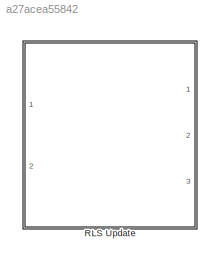
MODEL slx_a27acea55842
KIND library
CONFIG AbsTol = auto
CONFIG EnableMultiTasking = off
CONFIG FixedStep = auto
CONFIG MaxStep = auto
CONFIG MinStep = auto
CONFIG RelTol = 1e-3
CONFIG SampleTimeConstraint = Unconstrained
CONFIG Solver = VariableStepAuto
CONFIG SolverName = VariableStepAuto
CONFIG StartTime = 0.0
CONFIG StopTime = 10.0
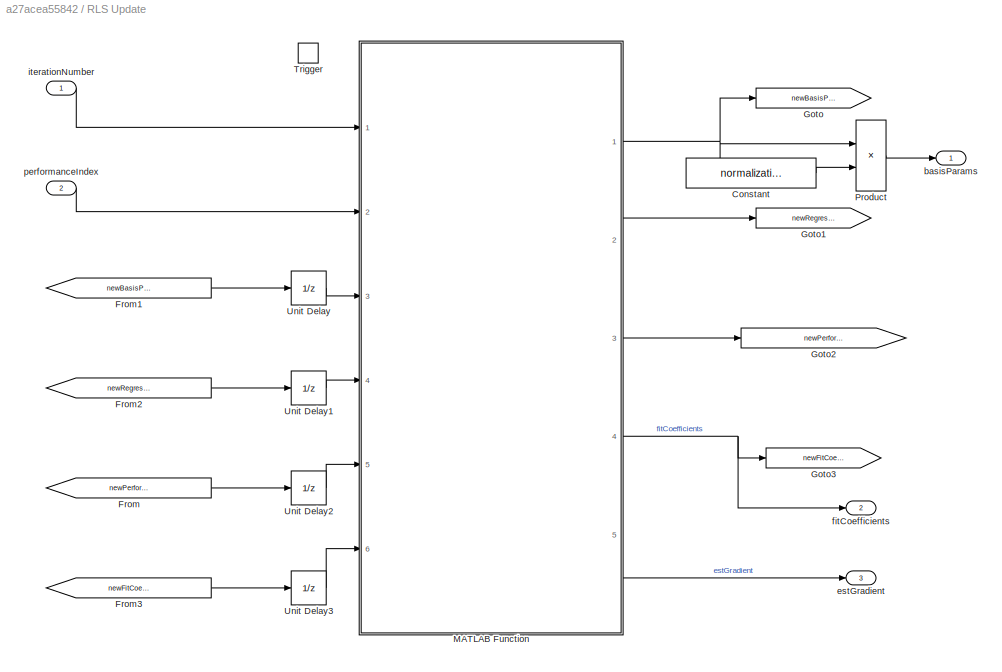
BLOCK [SubSystem] RLS Update
  Ports = [2, 3, 0, 1]
  RequestExecContextInheritance = off
  TreatAsAtomicUnit = on
BLOCK [Constant] RLS Update/Constant
  Value = normalizationFactors
BLOCK [From] RLS Update/From
  GotoTag = newPerformanceIndexVector
BLOCK [From] RLS Update/From1
  GotoTag = newBasisParams
BLOCK [From] RLS Update/From2
  GotoTag = newRegressorMatrix
BLOCK [From] RLS Update/From3
  GotoTag = newFitCoefficients
BLOCK [Goto] RLS Update/Goto
  GotoTag = newBasisParams
BLOCK [Goto] RLS Update/Goto1
  GotoTag = newRegressorMatrix
BLOCK [Goto] RLS Update/Goto2
  GotoTag = newPerformanceIndexVector
BLOCK [Goto] RLS Update/Goto3
  GotoTag = newFitCoefficients
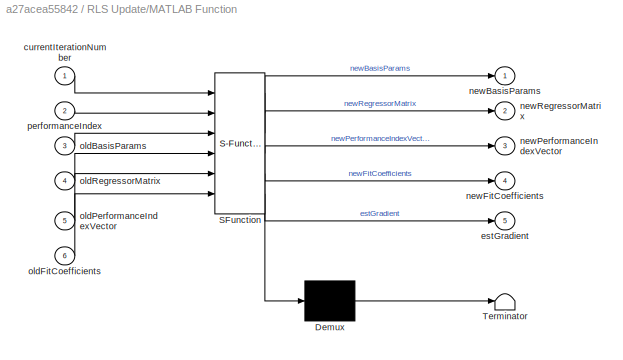
BLOCK [SubSystem] RLS Update/MATLAB Function
  ErrorFcn = Stateflow.Translate.translate
  PermitHierarchicalResolution = ExplicitOnly
  Ports = [6, 5]
  RequestExecContextInheritance = off
  SFBlockType = MATLAB Function
  TreatAsAtomicUnit = on
BLOCK [Demux] RLS Update/MATLAB Function/ Demux 
  Outputs = 1
  Ports = [1, 1]
BLOCK [S-Function] RLS Update/MATLAB Function/ SFunction 
  EnableBusSupport = off
  FunctionName = sf_sfun
  Parameters = forgettingFactor,initializationBasisParameters,learningGain,noiseAmplitude,normalizationFactors,numSettlingLaps,trustRegionDimensions
  PortCounts = [6 6]
  Ports = [6, 6]
  SFcnIsStateOwnerBlock = off
  SFunctionDeploymentMode = off
  Tag = Stateflow S-Function RLSUpdate_ul 2
BLOCK [Terminator] RLS Update/MATLAB Function/ Terminator 
BLOCK [Inport] RLS Update/MATLAB Function/currentIterationNumber
  IconDisplay = Port number
BLOCK [Outport] RLS Update/MATLAB Function/estGradient
  IconDisplay = Port number
  Port = 5
BLOCK [Outport] RLS Update/MATLAB Function/newBasisParams
  IconDisplay = Port number
BLOCK [Outport] RLS Update/MATLAB Function/newFitCoefficients
  IconDisplay = Port number
  Port = 4
BLOCK [Outport] RLS Update/MATLAB Function/newPerformanceIndexVector
  IconDisplay = Port number
  Port = 3
BLOCK [Outport] RLS Update/MATLAB Function/newRegressorMatrix
  IconDisplay = Port number
  Port = 2
BLOCK [Inport] RLS Update/MATLAB Function/oldBasisParams
  IconDisplay = Port number
  Port = 3
BLOCK [Inport] RLS Update/MATLAB Function/oldFitCoefficients
  IconDisplay = Port number
  Port = 6
BLOCK [Inport] RLS Update/MATLAB Function/oldPerformanceIndexVector
  IconDisplay = Port number
  Port = 5
BLOCK [Inport] RLS Update/MATLAB Function/oldRegressorMatrix
  IconDisplay = Port number
  Port = 4
BLOCK [Inport] RLS Update/MATLAB Function/performanceIndex
  IconDisplay = Port number
  Port = 2
BLOCK [Product] RLS Update/Product
  InputSameDT = off
  OutDataTypeStr = Inherit: Inherit via internal rule
  Ports = [2, 1]
  RndMeth = Floor
  SaturateOnIntegerOverflow = off
BLOCK [TriggerPort] RLS Update/Trigger
  PortDimensions = 1
  Ports = []
  StatesWhenEnabling = held
  VariantControl = Variant
BLOCK [UnitDelay] RLS Update/Unit Delay
  InitialCondition = settlingBasisParameter./normalizationFactors
  InputProcessing = Elements as channels (sample based)
  SampleTime = -1
BLOCK [UnitDelay] RLS Update/Unit Delay1
  InitialCondition = nan(size(p.initializationBasisParameters,1))
  InputProcessing = Elements as channels (sample based)
  SampleTime = -1
BLOCK [UnitDelay] RLS Update/Unit Delay2
  InitialCondition = nan(size(initializationBasisParameters,1),1)
  InputProcessing = Elements as channels (sample based)
  SampleTime = -1
BLOCK [UnitDelay] RLS Update/Unit Delay3
  InitialCondition = nan(size(initializationBasisParameters,1),1)
  InputProcessing = Elements as channels (sample based)
  SampleTime = -1
BLOCK [Outport] RLS Update/basisParams
  IconDisplay = Port number
  InitialOutput = settlingBasisParameter
BLOCK [Outport] RLS Update/estGradient
  IconDisplay = Port number
  Port = 3
BLOCK [Outport] RLS Update/fitCoefficients
  IconDisplay = Port number
  Port = 2
BLOCK [Inport] RLS Update/iterationNumber
  IconDisplay = Port number
BLOCK [Inport] RLS Update/performanceIndex
  IconDisplay = Port number
  Port = 2
LINE RLS Update/Constant:1 -> RLS Update/Product:2
LINE RLS Update/From1:1 -> RLS Update/Unit Delay:1
LINE RLS Update/From2:1 -> RLS Update/Unit Delay1:1
LINE RLS Update/From3:1 -> RLS Update/Unit Delay3:1
LINE RLS Update/From:1 -> RLS Update/Unit Delay2:1
NET RLS Update/MATLAB Function:1 -> RLS Update/Goto:1, RLS Update/Product:1
LINE RLS Update/MATLAB Function:2 -> RLS Update/Goto1:1
LINE RLS Update/MATLAB Function:3 -> RLS Update/Goto2:1
NET RLS Update/MATLAB Function:4 -> RLS Update/Goto3:1, RLS Update/fitCoefficients:1
LINE RLS Update/MATLAB Function:5 -> RLS Update/estGradient:1
LINE RLS Update/Product:1 -> RLS Update/basisParams:1
LINE RLS Update/Unit Delay1:1 -> RLS Update/MATLAB Function:4
LINE RLS Update/Unit Delay2:1 -> RLS Update/MATLAB Function:5
LINE RLS Update/Unit Delay3:1 -> RLS Update/MATLAB Function:6
LINE RLS Update/Unit Delay:1 -> RLS Update/MATLAB Function:3
LINE RLS Update/iterationNumber:1 -> RLS Update/MATLAB Function:1
LINE RLS Update/performanceIndex:1 -> RLS Update/MATLAB Function:2
note: NET lines group one-source signal fan-out (src -> all destinations, sorted); 1:1 wires keep LINE
CHART RLS Update/MATLAB Function states=1 transitions=1
  STATE_LABEL 'eML_blk_kernel()'
  STATE_LABEL 'SCRIPT:\nfunction [newBasisParams,newRegressorMatrix,newPerformanceIndexVector,...\n    newFitCoefficients,estGradient]...\n    = updateBasisParameters(...\n    currentIterationNumber, performanceIndex,...\n    oldBasisParams, oldRegressorMatrix,oldPerformanceIndexVector,...\n    oldFitCoefficients, initializationBasisParameters, numSettlingLaps,...\n    forgettingFactor, normalizationFactors, trustRegio...<+3608ch>'
